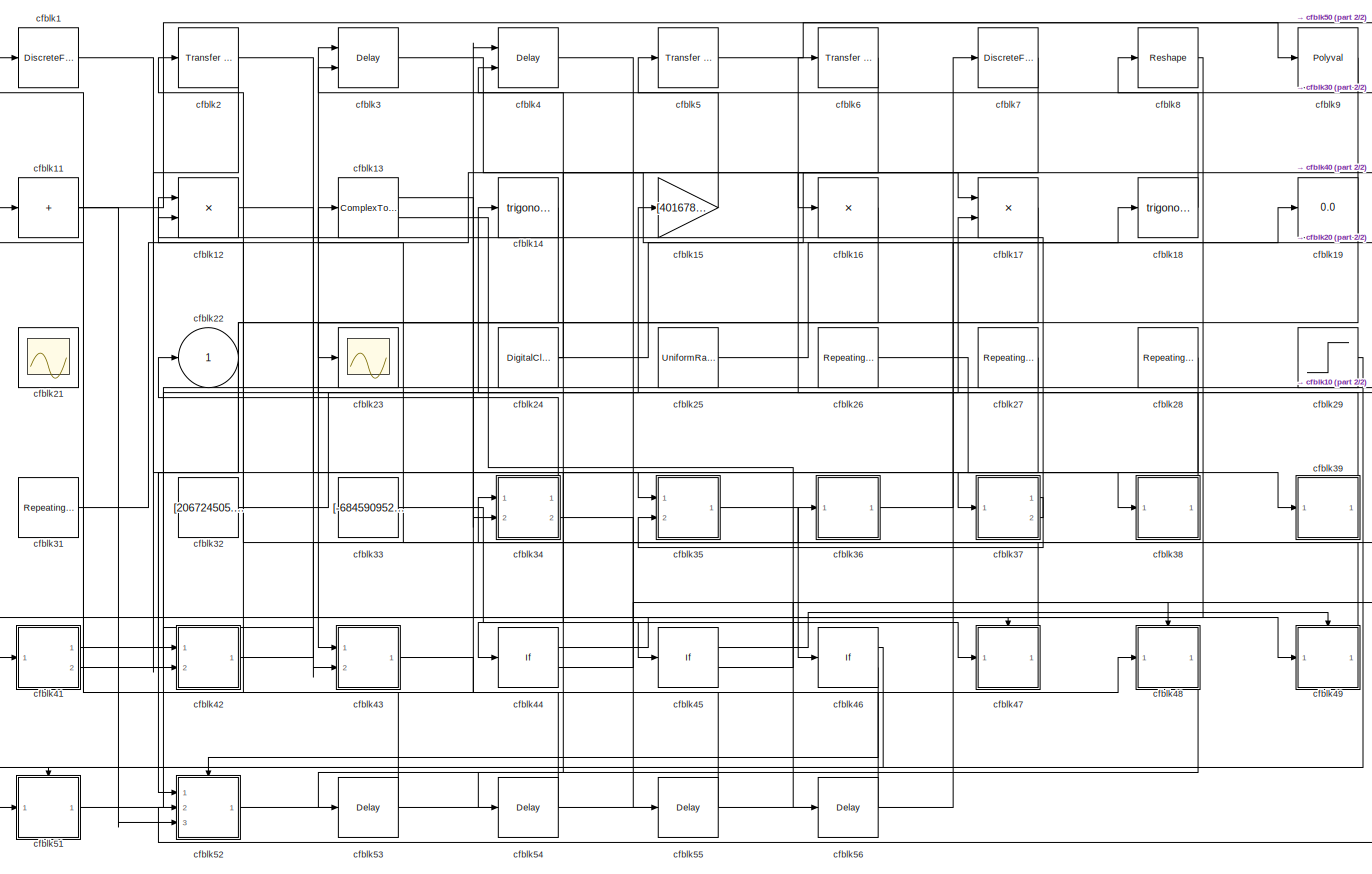
[diagram: root canvas - part 1/2, most of the canvas]
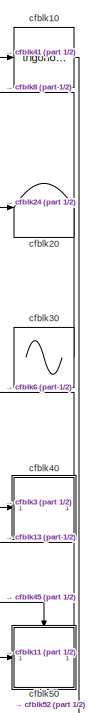
[diagram: root canvas - part 2/2, right side, full height]
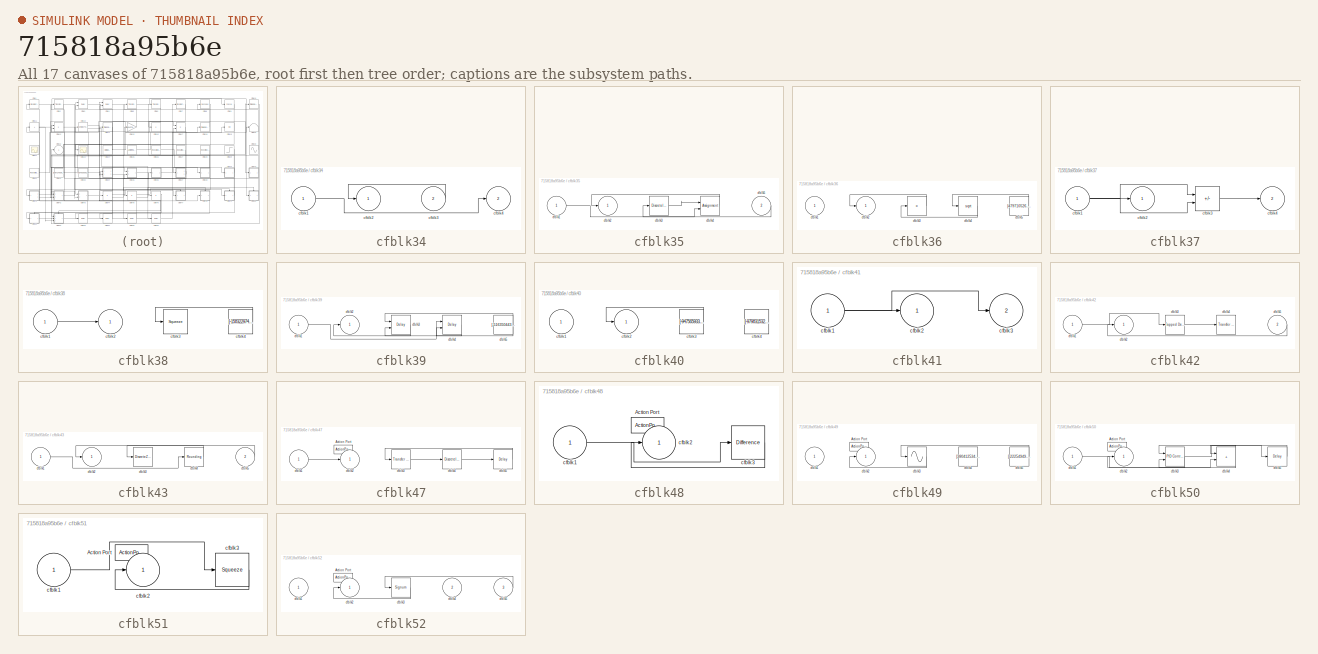
[diagram: thumbnail index - all 17 canvases of the model, root first then tree order]
MODEL slx_715818a95b6e
KIND model
CONFIG AbsTol = auto
CONFIG EnableMultiTasking = off
CONFIG FixedStep = auto
CONFIG MaxStep = auto
CONFIG MinStep = auto
CONFIG RelTol = 1e-3
CONFIG SampleTimeConstraint = Unconstrained
CONFIG SolverName = VariableStepAuto
CONFIG StartTime = 0.0
CONFIG StopTime = 10.0
BLOCK [DiscreteFir] cfblk1
  InputPortMap = u0
  OutputPortMap = o0
  Ports = [1, 1]
  SampleTime = 1
BLOCK [Trigonometry] cfblk10
  Ports = [1, 1]
BLOCK [Sum] cfblk11
  IconShape = rectangular
  Inputs = +
  Ports = [1, 1]
BLOCK [Product] cfblk12
  Inputs = **
  Ports = [2, 1]
BLOCK [ComplexToMagnitudeAngle] cfblk13
  Ports = [1, 2]
BLOCK [Trigonometry] cfblk14
  Ports = [1, 1]
BLOCK [Gain] cfblk15
  Gain = [401678154.669365]
BLOCK [Product] cfblk16
  Inputs = *
  Ports = [1, 1]
BLOCK [Product] cfblk17
  Inputs = **
  Ports = [2, 1]
BLOCK [Trigonometry] cfblk18
  Ports = [1, 1]
BLOCK [Display] cfblk19
  Decimation = 1
  Ports = [1]
BLOCK [Reference] cfblk2  REF=simulink/Discrete/Transfer Fcn
Real Zero
  Ports = [1, 1]
  SourceBlock = simulink/Discrete/Transfer Fcn\nReal Zero
  SourceProductBaseCode = SL
  SourceType = Transfer Fcn Real Zero
BLOCK [Terminator] cfblk20
BLOCK [Scope] cfblk21
  Floating = on
  NumInputPorts = 1
  Ports = []
BLOCK [Outport] cfblk22
BLOCK [Scope] cfblk23
  Floating = off
  NumInputPorts = 1
  Ports = [1]
BLOCK [DigitalClock] cfblk24
BLOCK [UniformRandomNumber] cfblk25
  Maximum = [4576921704.532799]
  Minimum = [-9424979121.208391]
  SampleTime = 0.1
  Seed = [56371023.000000]
BLOCK [Reference] cfblk26  REF=simulink/Sources/Repeating
Sequence
Interpolated
  Ports = [0, 1]
  SourceBlock = simulink/Sources/Repeating\nSequence\nInterpolated
  SourceProductBaseCode = SL
  SourceType = Repeating Sequence Interpolated
BLOCK [Reference] cfblk27  REF=simulink/Sources/Repeating
Sequence
  Ports = [0, 1]
  SourceBlock = simulink/Sources/Repeating\nSequence
  SourceProductBaseCode = SL
  SourceType = Repeating table
BLOCK [Reference] cfblk28  REF=simulink/Sources/Repeating
Sequence
  Ports = [0, 1]
  SourceBlock = simulink/Sources/Repeating\nSequence
  SourceProductBaseCode = SL
  SourceType = Repeating table
BLOCK [Step] cfblk29
  After = [-634457052.127596]
  Before = [111936378.065930]
  SampleTime = 0
  Time = [37.000000]
BLOCK [Delay] cfblk3
  InputPortMap = u0,e6
  Ports = [2, 1]
  SampleTime = 1
  ShowEnablePort = on
BLOCK [Sin] cfblk30
  Amplitude = [793889132.243178]
  Bias = [419481654.251079]
  Ports = [0, 1]
  SampleTime = 0
BLOCK [Reference] cfblk31  REF=simulink/Sources/Repeating
Sequence
Stair
  Ports = [0, 1]
  SourceBlock = simulink/Sources/Repeating\nSequence\nStair
  SourceProductBaseCode = SL
  SourceType = Repeating Sequence Stair
BLOCK [Constant] cfblk32
  SampleTime = 1
  Value = [206724505.704987]
BLOCK [Constant] cfblk33
  SampleTime = 1
  Value = [-684590952.311169]
BLOCK [SubSystem] cfblk34
  Ports = [2, 2]
  RequestExecContextInheritance = off
BLOCK [Inport] cfblk34/cfblk1
BLOCK [Outport] cfblk34/cfblk2
BLOCK [Inport] cfblk34/cfblk3
  Port = 2
BLOCK [Outport] cfblk34/cfblk4
  Port = 2
BLOCK [SubSystem] cfblk35
  Ports = [2, 1]
  RequestExecContextInheritance = off
BLOCK [Inport] cfblk35/cfblk1
BLOCK [Outport] cfblk35/cfblk2
BLOCK [DiscreteIntegrator] cfblk35/cfblk3
  ICPrevOutput = DiscIntNeverNeededParam
  ICPrevScaledInput = DiscIntNeverNeededParam
  InitialConditionSetting = Auto
  Ports = [1, 1]
BLOCK [Assignment] cfblk35/cfblk4
  DiagnosticForDimensions = Warning
  IndexOptions = Index vector (dialog)
  Indices = 1
  OutputSizes = 1
  Ports = [2, 1]
BLOCK [Inport] cfblk35/cfblk5
  Port = 2
BLOCK [SubSystem] cfblk36
  Ports = [1, 1]
  RequestExecContextInheritance = off
BLOCK [Inport] cfblk36/cfblk1
BLOCK [Outport] cfblk36/cfblk2
BLOCK [Product] cfblk36/cfblk3
  Inputs = *
  Ports = [1, 1]
BLOCK [Sqrt] cfblk36/cfblk4
BLOCK [Constant] cfblk36/cfblk5
  SampleTime = 1
  Value = [479710526.810282]
BLOCK [SubSystem] cfblk37
  Ports = [1, 2]
  RequestExecContextInheritance = off
BLOCK [Inport] cfblk37/cfblk1
BLOCK [Outport] cfblk37/cfblk2
BLOCK [Sum] cfblk37/cfblk3
  IconShape = rectangular
  Inputs = +-
  Ports = [2, 1]
BLOCK [Outport] cfblk37/cfblk4
  Port = 2
BLOCK [SubSystem] cfblk38
  Ports = [1, 1]
  RequestExecContextInheritance = off
BLOCK [Inport] cfblk38/cfblk1
BLOCK [Outport] cfblk38/cfblk2
BLOCK [Squeeze] cfblk38/cfblk3
BLOCK [Constant] cfblk38/cfblk4
  SampleTime = 1
  Value = [-158322974.185996]
BLOCK [SubSystem] cfblk39
  Ports = [1, 1]
  RequestExecContextInheritance = off
BLOCK [Inport] cfblk39/cfblk1
BLOCK [Outport] cfblk39/cfblk2
BLOCK [Delay] cfblk39/cfblk3
  InputPortMap = u0,e6
  Ports = [2, 1]
  SampleTime = 1
  ShowEnablePort = on
BLOCK [Delay] cfblk39/cfblk4
  DelayLengthSource = Input port
  InputPortMap = u0,p1
  Ports = [2, 1]
  SampleTime = 1
BLOCK [Constant] cfblk39/cfblk5
  SampleTime = 1
  Value = [-516350443.494032]
BLOCK [Delay] cfblk4
  DelayLengthSource = Input port
  InputPortMap = u0,p1
  Ports = [2, 1]
  SampleTime = 1
BLOCK [SubSystem] cfblk40
  Ports = [1, 1]
  RequestExecContextInheritance = off
BLOCK [Inport] cfblk40/cfblk1
BLOCK [Outport] cfblk40/cfblk2
BLOCK [Constant] cfblk40/cfblk3
  SampleTime = 1
  Value = [-947565933.944476]
BLOCK [Constant] cfblk40/cfblk4
  SampleTime = 1
  Value = [-979831532.050449]
BLOCK [SubSystem] cfblk41
  Ports = [1, 2]
  RequestExecContextInheritance = off
BLOCK [Inport] cfblk41/cfblk1
BLOCK [Outport] cfblk41/cfblk2
BLOCK [Outport] cfblk41/cfblk3
  Port = 2
BLOCK [SubSystem] cfblk42
  Ports = [2, 1]
  RequestExecContextInheritance = off
BLOCK [Inport] cfblk42/cfblk1
BLOCK [Outport] cfblk42/cfblk2
BLOCK [Reference] cfblk42/cfblk3  REF=simulink/Discrete/Tapped Delay
  Ports = [1, 1]
  SourceBlock = simulink/Discrete/Tapped Delay
  SourceProductBaseCode = SL
  SourceType = Tapped Delay Line
BLOCK [Reference] cfblk42/cfblk4  REF=simulink/Discrete/Transfer Fcn
First Order
  Ports = [1, 1]
  SourceBlock = simulink/Discrete/Transfer Fcn\nFirst Order
  SourceProductBaseCode = SL
  SourceType = First Order Transfer Fcn
BLOCK [Inport] cfblk42/cfblk5
  Port = 2
BLOCK [SubSystem] cfblk43
  Ports = [2, 1]
  RequestExecContextInheritance = off
BLOCK [Inport] cfblk43/cfblk1
BLOCK [Outport] cfblk43/cfblk2
BLOCK [DiscreteZeroPole] cfblk43/cfblk3
  Gain = 1
  Poles = [0 0.5]
BLOCK [Rounding] cfblk43/cfblk4
BLOCK [Inport] cfblk43/cfblk5
  Port = 2
BLOCK [If] cfblk44
  IfExpression = u1 >= 0
  Ports = [1, 2]
  SampleTime = 1
BLOCK [If] cfblk45
  IfExpression = u1 >= 0
  Ports = [1, 2]
  SampleTime = 1
BLOCK [If] cfblk46
  IfExpression = u1 >= 0
  Ports = [1, 2]
  SampleTime = 1
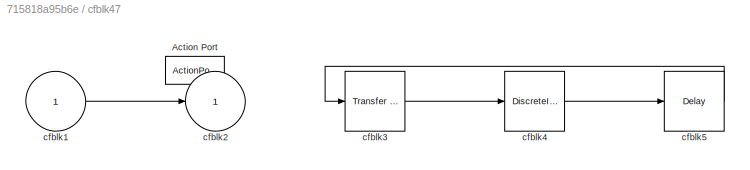
BLOCK [SubSystem] cfblk47
  Ports = [1, 1, 0, 0, 0, 0, 0, 1]
  RequestExecContextInheritance = off
  TreatAsAtomicUnit = on
BLOCK [ActionPort] cfblk47/Action Port
  ActionPortLabel = if(u1 >= 0)
BLOCK [Inport] cfblk47/cfblk1
BLOCK [Outport] cfblk47/cfblk2
BLOCK [Reference] cfblk47/cfblk3  REF=simulink/Discrete/Transfer Fcn
First Order
  Ports = [1, 1]
  SourceBlock = simulink/Discrete/Transfer Fcn\nFirst Order
  SourceProductBaseCode = SL
  SourceType = First Order Transfer Fcn
BLOCK [DiscreteIntegrator] cfblk47/cfblk4
  ICPrevOutput = DiscIntNeverNeededParam
  ICPrevScaledInput = DiscIntNeverNeededParam
  InitialConditionSetting = Auto
  Ports = [1, 1]
  SampleTime = -1
BLOCK [Delay] cfblk47/cfblk5
  InputPortMap = u0
  Ports = [1, 1]
BLOCK [SubSystem] cfblk48
  Ports = [1, 1, 0, 0, 0, 0, 0, 1]
  RequestExecContextInheritance = off
  TreatAsAtomicUnit = on
BLOCK [ActionPort] cfblk48/Action Port
  ActionPortLabel = else
BLOCK [Inport] cfblk48/cfblk1
BLOCK [Outport] cfblk48/cfblk2
BLOCK [Reference] cfblk48/cfblk3  REF=simulink/Discrete/Difference
  Ports = [1, 1]
  SourceBlock = simulink/Discrete/Difference
  SourceProductBaseCode = SL
  SourceType = Difference
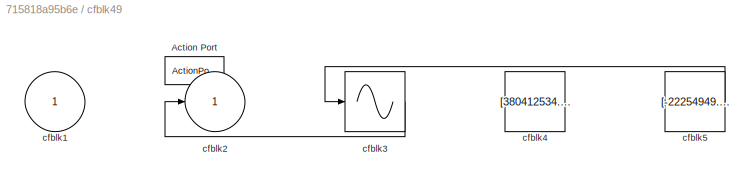
BLOCK [SubSystem] cfblk49
  Ports = [1, 1, 0, 0, 0, 0, 0, 1]
  RequestExecContextInheritance = off
  TreatAsAtomicUnit = on
BLOCK [ActionPort] cfblk49/Action Port
  ActionPortLabel = if(u1 >= 0)
BLOCK [Inport] cfblk49/cfblk1
BLOCK [Outport] cfblk49/cfblk2
BLOCK [Sin] cfblk49/cfblk3
  Ports = [1, 1]
  SampleTime = 0
  TimeSource = Use external signal
BLOCK [Constant] cfblk49/cfblk4
  SampleTime = 1
  Value = [380412534.246480]
BLOCK [Constant] cfblk49/cfblk5
  SampleTime = 1
  Value = [-22254949.397303]
BLOCK [Reference] cfblk5  REF=simulink/Discrete/Transfer Fcn
First Order
  Ports = [1, 1]
  SourceBlock = simulink/Discrete/Transfer Fcn\nFirst Order
  SourceProductBaseCode = SL
  SourceType = First Order Transfer Fcn
BLOCK [SubSystem] cfblk50
  Ports = [1, 1, 0, 0, 0, 0, 0, 1]
  RequestExecContextInheritance = off
  TreatAsAtomicUnit = on
BLOCK [ActionPort] cfblk50/Action Port
  ActionPortLabel = else
BLOCK [Inport] cfblk50/cfblk1
BLOCK [Outport] cfblk50/cfblk2
BLOCK [Reference] cfblk50/cfblk3  REF=slpidlib/PID Controller (2DOF)
  Ports = [2, 1]
  SourceBlock = slpidlib/PID Controller (2DOF)
  SourceProductBaseCode = SL
  SourceType = PID 2dof
BLOCK [Sum] cfblk50/cfblk4
  IconShape = rectangular
  Ports = [2, 1]
BLOCK [Delay] cfblk50/cfblk5
  InputPortMap = u0
  Ports = [1, 1]
BLOCK [SubSystem] cfblk51
  Ports = [1, 1, 0, 0, 0, 0, 0, 1]
  RequestExecContextInheritance = off
  TreatAsAtomicUnit = on
BLOCK [ActionPort] cfblk51/Action Port
  ActionPortLabel = if(u1 >= 0)
BLOCK [Inport] cfblk51/cfblk1
BLOCK [Outport] cfblk51/cfblk2
BLOCK [Squeeze] cfblk51/cfblk3
BLOCK [SubSystem] cfblk52
  Ports = [3, 1, 0, 0, 0, 0, 0, 1]
  RequestExecContextInheritance = off
  TreatAsAtomicUnit = on
BLOCK [ActionPort] cfblk52/Action Port
  ActionPortLabel = else
BLOCK [Inport] cfblk52/cfblk1
BLOCK [Outport] cfblk52/cfblk2
BLOCK [Signum] cfblk52/cfblk3
BLOCK [Inport] cfblk52/cfblk4
  Port = 2
BLOCK [Inport] cfblk52/cfblk5
  Port = 3
BLOCK [Delay] cfblk53
  InputPortMap = u0
  Ports = [1, 1]
  SampleTime = 1
BLOCK [Delay] cfblk54
  InputPortMap = u0
  Ports = [1, 1]
  SampleTime = 1
BLOCK [Delay] cfblk55
  InputPortMap = u0
  Ports = [1, 1]
  SampleTime = 1
BLOCK [Delay] cfblk56
  InputPortMap = u0
  Ports = [1, 1]
  SampleTime = 1
BLOCK [Reference] cfblk6  REF=simulink/Discrete/Transfer Fcn
First Order
  Ports = [1, 1]
  SourceBlock = simulink/Discrete/Transfer Fcn\nFirst Order
  SourceProductBaseCode = SL
  SourceType = First Order Transfer Fcn
BLOCK [DiscreteFilter] cfblk7
  InputPortMap = u0
  Ports = [1, 1]
  SampleTime = 1
BLOCK [Reshape] cfblk8
  Ports = [1, 1]
BLOCK [Polyval] cfblk9
  Coefs = [ +2.081618890e-019, -1.441693666e-014, +4.719686976e-010, -8.536869453e-006, +1.621573104e-001, -8.087801117e+001 ]
LINE cfblk10:1 -> cfblk52:2
NET cfblk11:1 -> cfblk50:1, cfblk52:3
LINE cfblk12:1 -> cfblk49:1
LINE cfblk13:1 -> cfblk34:2
LINE cfblk13:2 -> cfblk56:1
LINE cfblk14:1 -> cfblk42:1
LINE cfblk15:1 -> cfblk5:1
LINE cfblk16:1 -> cfblk43:1
LINE cfblk17:1 -> cfblk52:1
LINE cfblk18:1 -> cfblk3:1
LINE cfblk1:1 -> cfblk35:1
NET cfblk24:1 -> cfblk20:1, cfblk4:2
LINE cfblk25:1 -> cfblk18:1
LINE cfblk26:1 -> cfblk39:1
LINE cfblk27:1 -> cfblk44:1
LINE cfblk28:1 -> cfblk37:1
LINE cfblk29:1 -> cfblk51:1
NET cfblk2:1 -> cfblk38:1, cfblk42:2
LINE cfblk30:1 -> cfblk8:1
LINE cfblk31:1 -> cfblk17:1
LINE cfblk32:1 -> cfblk17:2
LINE cfblk33:1 -> cfblk45:1
LINE cfblk34/cfblk1:1 -> cfblk34/cfblk4:1
LINE cfblk34/cfblk3:1 -> cfblk34/cfblk2:1
LINE cfblk34:1 -> cfblk22:1
LINE cfblk34:2 -> cfblk55:1
LINE cfblk35/cfblk1:1 -> cfblk35/cfblk4:2
LINE cfblk35/cfblk3:1 -> cfblk35/cfblk4:1
LINE cfblk35/cfblk4:1 -> cfblk35/cfblk2:1
LINE cfblk35/cfblk5:1 -> cfblk35/cfblk3:1
LINE cfblk35:1 -> cfblk46:1
LINE cfblk36/cfblk3:1 -> cfblk36/cfblk2:1
LINE cfblk36/cfblk4:1 -> cfblk36/cfblk3:1
LINE cfblk36/cfblk5:1 -> cfblk36/cfblk4:1
LINE cfblk36:1 -> cfblk19:1
NET cfblk37/cfblk1:1 -> cfblk37/cfblk2:1, cfblk37/cfblk3:1, cfblk37/cfblk3:2
LINE cfblk37/cfblk3:1 -> cfblk37/cfblk4:1
LINE cfblk37:1 -> cfblk35:2
LINE cfblk37:2 -> cfblk12:2
LINE cfblk38/cfblk1:1 -> cfblk38/cfblk2:1
LINE cfblk38/cfblk4:1 -> cfblk38/cfblk3:1
LINE cfblk38:1 -> cfblk3:2
LINE cfblk39/cfblk1:1 -> cfblk39/cfblk4:1
LINE cfblk39/cfblk3:1 -> cfblk39/cfblk2:1
LINE cfblk39/cfblk4:1 -> cfblk39/cfblk3:2
NET cfblk39/cfblk5:1 -> cfblk39/cfblk3:1, cfblk39/cfblk4:2
LINE cfblk39:1 -> cfblk14:1
LINE cfblk3:1 -> cfblk40:1
LINE cfblk40/cfblk3:1 -> cfblk40/cfblk2:1
LINE cfblk40:1 -> cfblk6:1
NET cfblk41/cfblk1:1 -> cfblk41/cfblk2:1, cfblk41/cfblk3:1
LINE cfblk41:1 -> cfblk43:2
LINE cfblk41:2 -> cfblk10:1
LINE cfblk42/cfblk1:1 -> cfblk42/cfblk3:1
LINE cfblk42/cfblk3:1 -> cfblk42/cfblk4:1
LINE cfblk42/cfblk5:1 -> cfblk42/cfblk2:1
LINE cfblk42:1 -> cfblk36:1
LINE cfblk43/cfblk1:1 -> cfblk43/cfblk4:1
LINE cfblk43/cfblk4:1 -> cfblk43/cfblk3:1
LINE cfblk43/cfblk5:1 -> cfblk43/cfblk2:1
LINE cfblk43:1 -> cfblk48:1
LINE cfblk44:1 -> cfblk47:ifaction
LINE cfblk44:2 -> cfblk48:ifaction
LINE cfblk45:1 -> cfblk49:ifaction
LINE cfblk45:2 -> cfblk50:ifaction
LINE cfblk46:1 -> cfblk51:ifaction
LINE cfblk46:2 -> cfblk52:ifaction
LINE cfblk47/cfblk1:1 -> cfblk47/cfblk2:1
LINE cfblk47/cfblk3:1 -> cfblk47/cfblk4:1
LINE cfblk47/cfblk4:1 -> cfblk47/cfblk5:1
LINE cfblk47/cfblk5:1 -> cfblk47/cfblk3:1
LINE cfblk47:1 -> cfblk12:1
LINE cfblk48/cfblk1:1 -> cfblk48/cfblk3:1
LINE cfblk48/cfblk3:1 -> cfblk48/cfblk2:1
LINE cfblk48:1 -> cfblk53:1
LINE cfblk49/cfblk3:1 -> cfblk49/cfblk2:1
LINE cfblk49/cfblk5:1 -> cfblk49/cfblk3:1
LINE cfblk49:1 -> cfblk34:1
LINE cfblk4:1 -> cfblk47:1
LINE cfblk50/cfblk1:1 -> cfblk50/cfblk4:2
NET cfblk50/cfblk3:1 -> cfblk50/cfblk2:1, cfblk50/cfblk5:1
NET cfblk50/cfblk4:1 -> cfblk50/cfblk3:1, cfblk50/cfblk3:2
LINE cfblk50/cfblk5:1 -> cfblk50/cfblk4:1
LINE cfblk50:1 -> cfblk13:1
LINE cfblk51/cfblk1:1 -> cfblk51/cfblk3:1
LINE cfblk51/cfblk3:1 -> cfblk51/cfblk2:1
LINE cfblk51:1 -> cfblk15:1
LINE cfblk52/cfblk3:1 -> cfblk52/cfblk2:1
LINE cfblk52/cfblk5:1 -> cfblk52/cfblk3:1
LINE cfblk52:1 -> cfblk7:1
LINE cfblk53:1 -> cfblk1:1
LINE cfblk54:1 -> cfblk2:1
LINE cfblk55:1 -> cfblk4:1
LINE cfblk56:1 -> cfblk11:1
LINE cfblk5:1 -> cfblk9:1
LINE cfblk6:1 -> cfblk54:1
LINE cfblk7:1 -> cfblk16:1
LINE cfblk8:1 -> cfblk41:1
LINE cfblk9:1 -> cfblk23:1
note: NET lines group one-source signal fan-out (src -> all destinations, sorted); 1:1 wires keep LINE
